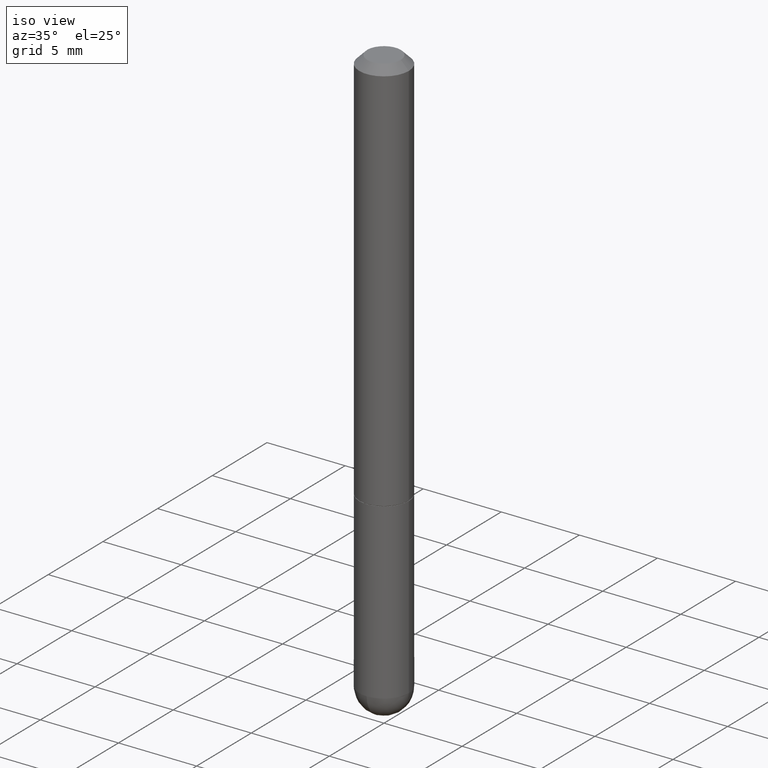
[diagram: clean part render]
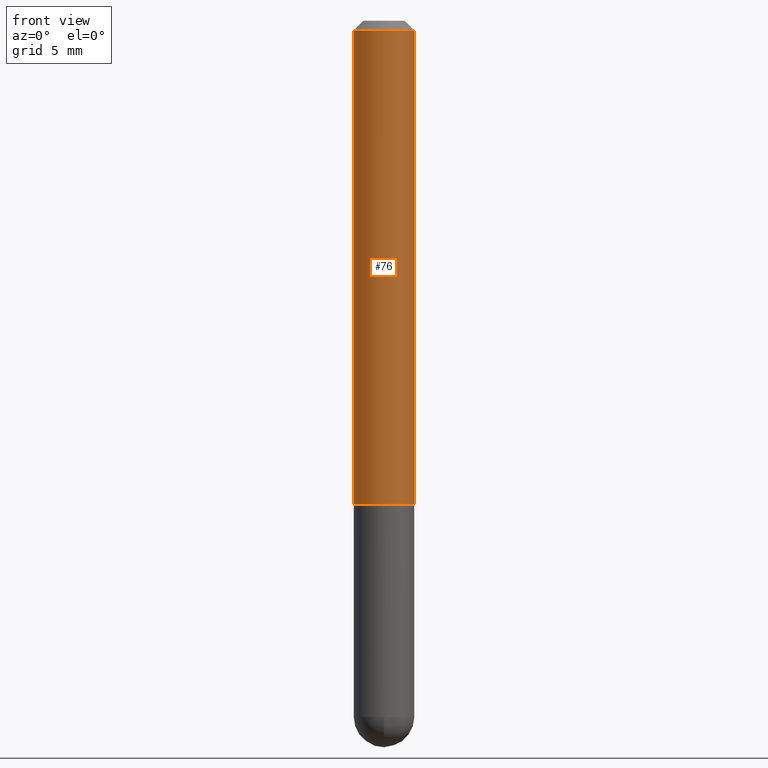
[diagram: tour spotlight — one face highlighted and labeled with its STEP entity id]
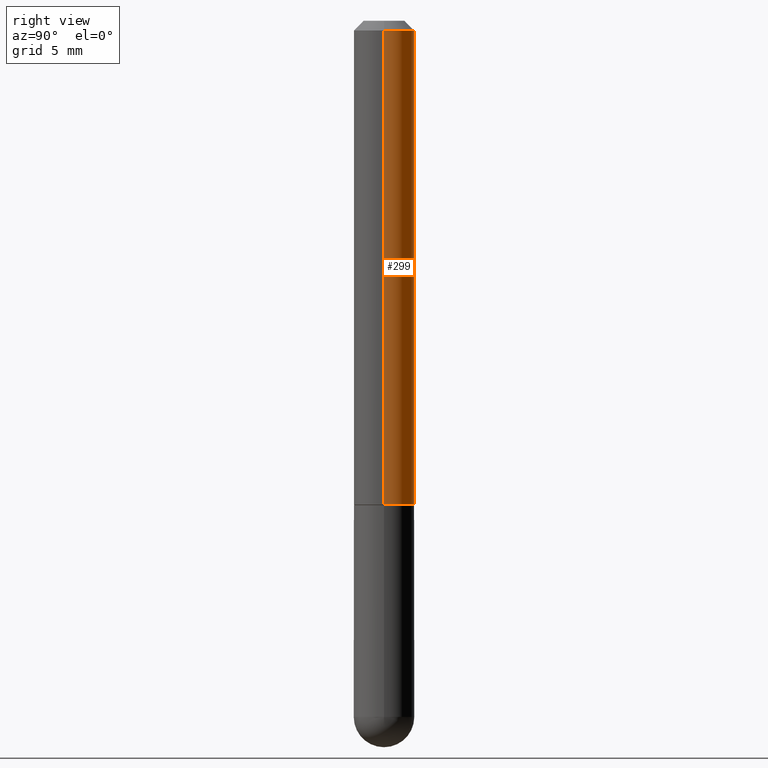
[diagram: tour spotlight — one face highlighted and labeled with its STEP entity id]
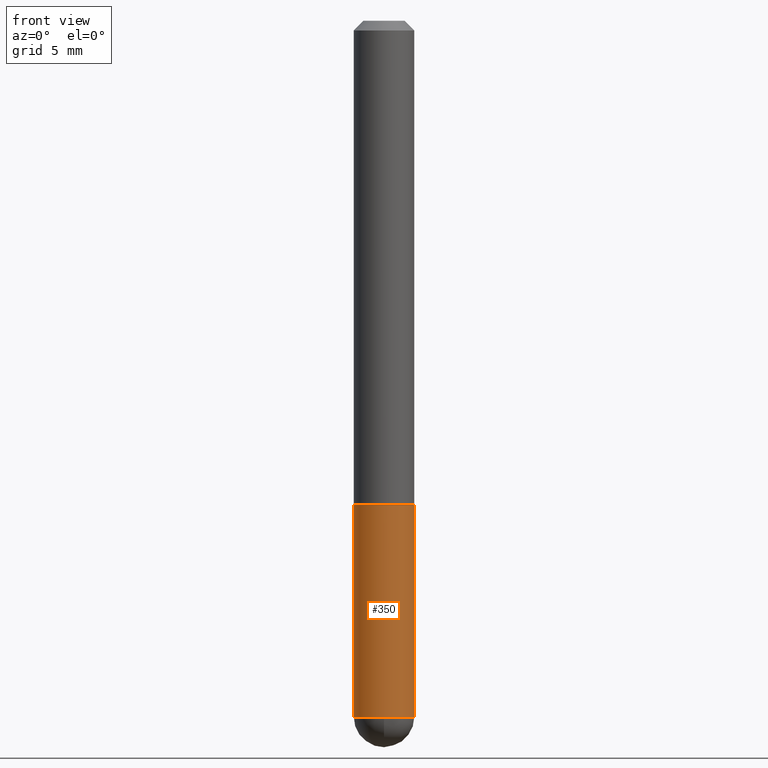
[diagram: tour spotlight — one face highlighted and labeled with its STEP entity id]
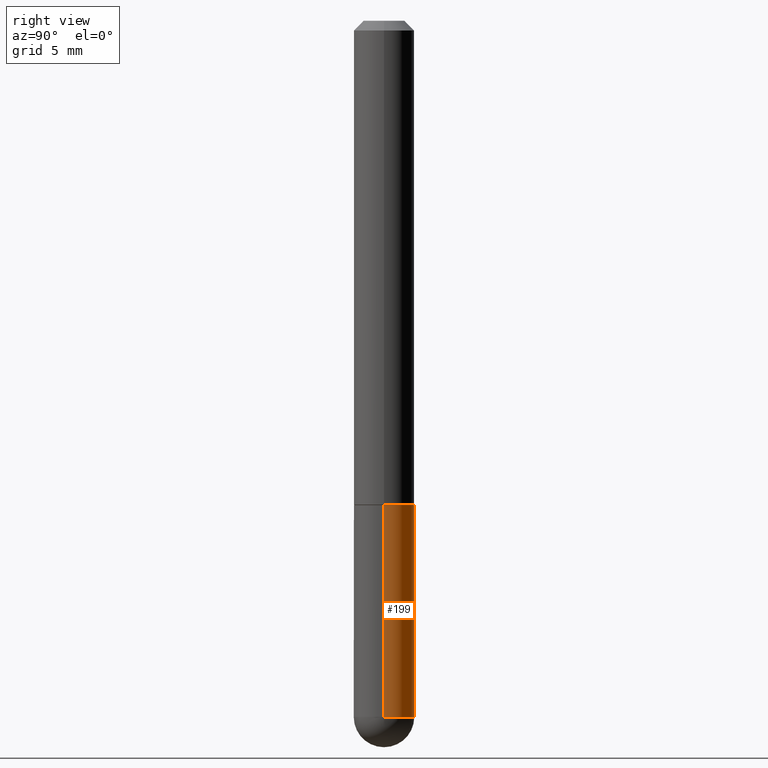
[diagram: tour spotlight — one face highlighted and labeled with its STEP entity id]
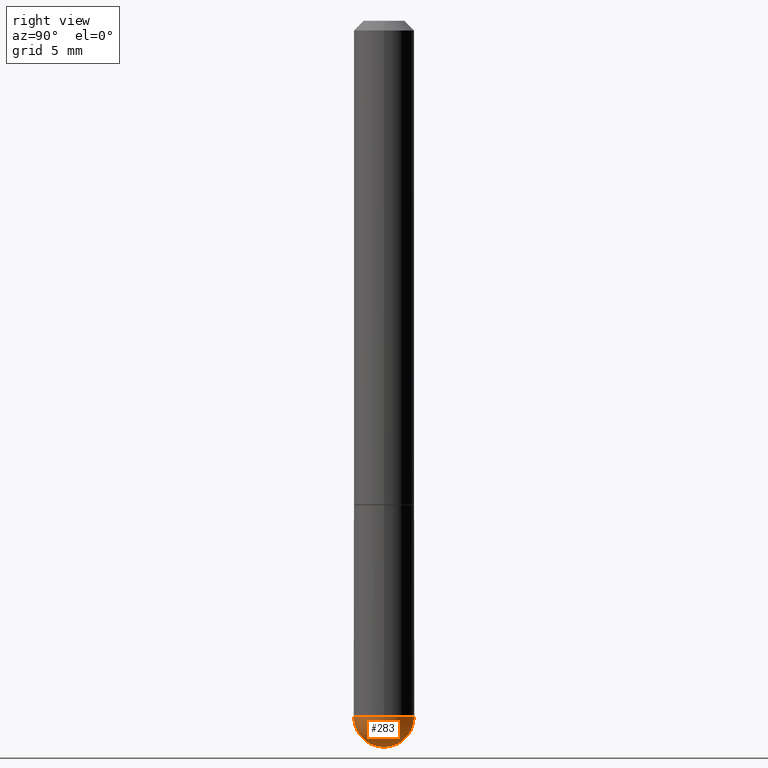
[diagram: tour spotlight — one face highlighted and labeled with its STEP entity id]
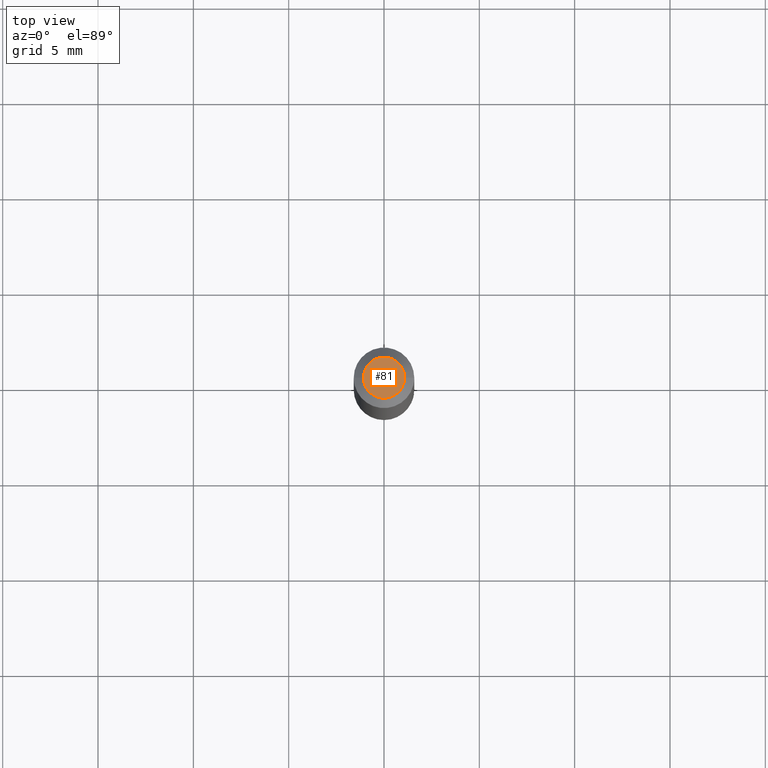
[diagram: tour spotlight — one face highlighted and labeled with its STEP entity id]
A machine part: a face-by-face anatomy tour. The part has 13 B-rep faces; the first image is the clean iso view, then the 6 largest visible faces are spotlighted one at a time (largest first), each with its STEP entity span.

Face 1 — front view, entity #76. In plain terms, the highlighted cylindrical surface (edge-blend (fillet) strip) has radius 1.5875 mm, axis along (-0, 0, 1).
Definition (entity closure, byte-faithful):
#2 = CYLINDRICAL_SURFACE ( 'NONE', #74, 0.06250000000000004163 ) ;
#15 = ORIENTED_EDGE ( 'NONE', *, *, #376, .F. ) ;
#37 = CARTESIAN_POINT ( 'NONE',  ( -0.06250000000000013878, -1.334820532290516771E-15, -0.9990000000000002212 ) ) ;
#67 = CARTESIAN_POINT ( 'NONE',  ( 0.06250000000000004163, -4.364351673553919652E-16, 3.047610484872461972E-30 ) ) ;
#74 = AXIS2_PLACEMENT_3D ( 'NONE', #292, #354, #89 ) ;
#76 = ADVANCED_FACE ( 'NONE', ( #132 ), #2, .T. ) ;
#86 = DIRECTION ( 'NONE',  ( -2.445468806185136877E-29, 3.491481338843145188E-15, 1.000000000000000000 ) ) ;
#89 = DIRECTION ( 'NONE',  ( 1.000000000000000000, -6.982962677686266711E-15, 4.876176775795935793E-29 ) ) ;
#95 = CARTESIAN_POINT ( 'NONE',  ( -0.06250000000000004163, 4.440892098500629120E-16, -3.074334431409318216E-30 ) ) ;
#119 = EDGE_CURVE ( 'NONE', #385, #229, #175, .T. ) ;
#120 = DIRECTION ( 'NONE',  ( 1.000000000000000000, -6.982962677686270655E-15, 0.000000000000000000 ) ) ;
#126 = VECTOR ( 'NONE', #86, 39.37007874015748143 ) ;
#130 = DIRECTION ( 'NONE',  ( -2.445468806185136597E-29, 3.491481338843145583E-15, 1.000000000000000000 ) ) ;
#132 = FACE_OUTER_BOUND ( 'NONE', #140, .T. ) ;
#134 = CARTESIAN_POINT ( 'NONE',  ( -0.06249999999999995143, 3.666055405785281740E-16, -0.02000000000000006981 ) ) ;
#140 = EDGE_LOOP ( 'NONE', ( #15, #412, #244, #178 ) ) ;
#144 = EDGE_CURVE ( 'NONE', #229, #216, #254, .T. ) ;
#151 = DIRECTION ( 'NONE',  ( -2.445468806185136597E-29, 3.491481338843145583E-15, 1.000000000000000000 ) ) ;
#159 = DIRECTION ( 'NONE',  ( 1.000000000000000000, -6.982962677686266711E-15, 0.000000000000000000 ) ) ;
#173 = DIRECTION ( 'NONE',  ( -2.445468806185136877E-29, 3.491481338843145188E-15, 1.000000000000000000 ) ) ;
#175 = CIRCLE ( 'NONE', #402, 0.06250000000000013878 ) ;
#178 = ORIENTED_EDGE ( 'NONE', *, *, #340, .F. ) ;
#197 = CARTESIAN_POINT ( 'NONE',  ( 4.890937612370289799E-31, -6.982962677686315028E-17, -0.02000000000000006981 ) ) ;
#201 = LINE ( 'NONE', #95, #337 ) ;
#207 = CARTESIAN_POINT ( 'NONE',  ( 0.06249999999999995143, -4.986107516375835278E-16, -0.02000000000000006981 ) ) ;
#216 = VERTEX_POINT ( 'NONE', #207 ) ;
#229 = VERTEX_POINT ( 'NONE', #259 ) ;
#244 = ORIENTED_EDGE ( 'NONE', *, *, #144, .T. ) ;
#247 = CIRCLE ( 'NONE', #312, 0.06249999999999995143 ) ;
#254 = LINE ( 'NONE', #67, #126 ) ;
#259 = CARTESIAN_POINT ( 'NONE',  ( 0.06250000000000013878, -3.924425024859695428E-15, -0.9990000000000002212 ) ) ;
#292 = CARTESIAN_POINT ( 'NONE',  ( 0.000000000000000000, 0.000000000000000000, 0.000000000000000000 ) ) ;
#312 = AXIS2_PLACEMENT_3D ( 'NONE', #197, #130, #159 ) ;
#325 = VERTEX_POINT ( 'NONE', #134 ) ;
#337 = VECTOR ( 'NONE', #173, 39.37007874015748143 ) ;
#340 = EDGE_CURVE ( 'NONE', #325, #216, #247, .T. ) ;
#352 = CARTESIAN_POINT ( 'NONE',  ( 2.443023337378951835E-29, -3.487989857504302970E-15, -0.9990000000000002212 ) ) ;
#354 = DIRECTION ( 'NONE',  ( -2.445468806185136597E-29, 3.491481338843145583E-15, 1.000000000000000000 ) ) ;
#376 = EDGE_CURVE ( 'NONE', #385, #325, #201, .T. ) ;
#385 = VERTEX_POINT ( 'NONE', #37 ) ;
#402 = AXIS2_PLACEMENT_3D ( 'NONE', #352, #151, #120 ) ;
#412 = ORIENTED_EDGE ( 'NONE', *, *, #119, .T. ) ;

Face 2 — right view, entity #299. In plain terms, the highlighted cylindrical surface (edge-blend (fillet) strip) has radius 1.5875 mm, axis along (-0, 0, 1).
Definition (entity closure, byte-faithful):
#3 = ORIENTED_EDGE ( 'NONE', *, *, #314, .F. ) ;
#7 = DIRECTION ( 'NONE',  ( -2.445468806185136597E-29, 3.491481338843145583E-15, 1.000000000000000000 ) ) ;
#36 = FACE_OUTER_BOUND ( 'NONE', #353, .T. ) ;
#37 = CARTESIAN_POINT ( 'NONE',  ( -0.06250000000000013878, -1.334820532290516771E-15, -0.9990000000000002212 ) ) ;
#40 = EDGE_CURVE ( 'NONE', #229, #385, #179, .T. ) ;
#67 = CARTESIAN_POINT ( 'NONE',  ( 0.06250000000000004163, -4.364351673553919652E-16, 3.047610484872461972E-30 ) ) ;
#83 = AXIS2_PLACEMENT_3D ( 'NONE', #204, #332, #274 ) ;
#86 = DIRECTION ( 'NONE',  ( -2.445468806185136877E-29, 3.491481338843145188E-15, 1.000000000000000000 ) ) ;
#95 = CARTESIAN_POINT ( 'NONE',  ( -0.06250000000000004163, 4.440892098500629120E-16, -3.074334431409318216E-30 ) ) ;
#126 = VECTOR ( 'NONE', #86, 39.37007874015748143 ) ;
#127 = AXIS2_PLACEMENT_3D ( 'NONE', #137, #7, #200 ) ;
#134 = CARTESIAN_POINT ( 'NONE',  ( -0.06249999999999995143, 3.666055405785281740E-16, -0.02000000000000006981 ) ) ;
#137 = CARTESIAN_POINT ( 'NONE',  ( 4.890937612370289799E-31, -6.982962677686315028E-17, -0.02000000000000006981 ) ) ;
#144 = EDGE_CURVE ( 'NONE', #229, #216, #254, .T. ) ;
#147 = AXIS2_PLACEMENT_3D ( 'NONE', #275, #167, #297 ) ;
#162 = ORIENTED_EDGE ( 'NONE', *, *, #40, .T. ) ;
#167 = DIRECTION ( 'NONE',  ( -2.445468806185136597E-29, 3.491481338843145583E-15, 1.000000000000000000 ) ) ;
#173 = DIRECTION ( 'NONE',  ( -2.445468806185136877E-29, 3.491481338843145188E-15, 1.000000000000000000 ) ) ;
#179 = CIRCLE ( 'NONE', #83, 0.06250000000000013878 ) ;
#200 = DIRECTION ( 'NONE',  ( 1.000000000000000000, -6.982962677686266711E-15, 0.000000000000000000 ) ) ;
#201 = LINE ( 'NONE', #95, #337 ) ;
#204 = CARTESIAN_POINT ( 'NONE',  ( 2.443023337378951835E-29, -3.487989857504302970E-15, -0.9990000000000002212 ) ) ;
#207 = CARTESIAN_POINT ( 'NONE',  ( 0.06249999999999995143, -4.986107516375835278E-16, -0.02000000000000006981 ) ) ;
#216 = VERTEX_POINT ( 'NONE', #207 ) ;
#229 = VERTEX_POINT ( 'NONE', #259 ) ;
#254 = LINE ( 'NONE', #67, #126 ) ;
#259 = CARTESIAN_POINT ( 'NONE',  ( 0.06250000000000013878, -3.924425024859695428E-15, -0.9990000000000002212 ) ) ;
#274 = DIRECTION ( 'NONE',  ( 1.000000000000000000, -6.982962677686270655E-15, 0.000000000000000000 ) ) ;
#275 = CARTESIAN_POINT ( 'NONE',  ( 0.000000000000000000, 0.000000000000000000, 0.000000000000000000 ) ) ;
#297 = DIRECTION ( 'NONE',  ( 1.000000000000000000, -6.982962677686266711E-15, 4.876176775795935793E-29 ) ) ;
#299 = ADVANCED_FACE ( 'NONE', ( #36 ), #394, .T. ) ;
#314 = EDGE_CURVE ( 'NONE', #216, #325, #317, .T. ) ;
#317 = CIRCLE ( 'NONE', #127, 0.06249999999999995143 ) ;
#325 = VERTEX_POINT ( 'NONE', #134 ) ;
#332 = DIRECTION ( 'NONE',  ( -2.445468806185136597E-29, 3.491481338843145583E-15, 1.000000000000000000 ) ) ;
#337 = VECTOR ( 'NONE', #173, 39.37007874015748143 ) ;
#347 = ORIENTED_EDGE ( 'NONE', *, *, #376, .T. ) ;
#353 = EDGE_LOOP ( 'NONE', ( #162, #347, #3, #361 ) ) ;
#361 = ORIENTED_EDGE ( 'NONE', *, *, #144, .F. ) ;
#376 = EDGE_CURVE ( 'NONE', #385, #325, #201, .T. ) ;
#385 = VERTEX_POINT ( 'NONE', #37 ) ;
#394 = CYLINDRICAL_SURFACE ( 'NONE', #147, 0.06250000000000004163 ) ;

Face 3 — front view, entity #350. In plain terms, the highlighted cylindrical surface (edge-blend (fillet) strip) has radius 1.5875 mm, axis along (-0, 0, 1).
Definition (entity closure, byte-faithful):
#5 = VERTEX_POINT ( 'NONE', #107 ) ;
#6 = CARTESIAN_POINT ( 'NONE',  ( -4.440892098500294840E-16, -0.06250000000000532907, -1.437500000000000000 ) ) ;
#18 = VERTEX_POINT ( 'NONE', #6 ) ;
#29 = CARTESIAN_POINT ( 'NONE',  ( 0.06249999999999997224, -4.364351673553914722E-16, 3.047610484872458469E-30 ) ) ;
#41 = VECTOR ( 'NONE', #180, 39.37007874015748143 ) ;
#44 = LINE ( 'NONE', #79, #41 ) ;
#52 = ORIENTED_EDGE ( 'NONE', *, *, #245, .T. ) ;
#53 = CARTESIAN_POINT ( 'NONE',  ( -0.06250000000000000000, -3.811153671865022332E-15, -1.000000000000000222 ) ) ;
#57 = CARTESIAN_POINT ( 'NONE',  ( 3.515361408891134418E-29, -5.019004424587023131E-15, -1.437500000000000222 ) ) ;
#65 = EDGE_CURVE ( 'NONE', #154, #5, #149, .T. ) ;
#70 = DIRECTION ( 'NONE',  ( 1.000000000000000000, -6.982962677686262766E-15, 0.000000000000000000 ) ) ;
#79 = CARTESIAN_POINT ( 'NONE',  ( -0.06249999999999997224, 4.440892098500624190E-16, -3.074334431409315063E-30 ) ) ;
#80 = VERTEX_POINT ( 'NONE', #251 ) ;
#87 = DIRECTION ( 'NONE',  ( 1.000000000000000000, -6.982962677686266711E-15, 4.876176775795935793E-29 ) ) ;
#98 = CARTESIAN_POINT ( 'NONE',  ( 0.000000000000000000, 0.000000000000000000, 0.000000000000000000 ) ) ;
#102 = VERTEX_POINT ( 'NONE', #122 ) ;
#107 = CARTESIAN_POINT ( 'NONE',  ( 0.06250000000000000000, -3.927916506198537646E-15, -1.000000000000000222 ) ) ;
#122 = CARTESIAN_POINT ( 'NONE',  ( -0.06249999999999995143, -3.811153671865022332E-15, -1.437500000000000222 ) ) ;
#128 = FACE_OUTER_BOUND ( 'NONE', #336, .T. ) ;
#143 = ORIENTED_EDGE ( 'NONE', *, *, #357, .T. ) ;
#149 = CIRCLE ( 'NONE', #395, 0.06250000000000000000 ) ;
#154 = VERTEX_POINT ( 'NONE', #53 ) ;
#155 = DIRECTION ( 'NONE',  ( -2.445468806185136877E-29, 3.491481338843145188E-15, 1.000000000000000000 ) ) ;
#156 = EDGE_CURVE ( 'NONE', #18, #80, #184, .T. ) ;
#180 = DIRECTION ( 'NONE',  ( -2.445468806185136877E-29, 3.491481338843145188E-15, 1.000000000000000000 ) ) ;
#184 = CIRCLE ( 'NONE', #307, 0.06249999999999995143 ) ;
#187 = CARTESIAN_POINT ( 'NONE',  ( 3.515361408891134418E-29, -5.019004424587023131E-15, -1.437500000000000222 ) ) ;
#219 = EDGE_CURVE ( 'NONE', #102, #154, #44, .T. ) ;
#231 = DIRECTION ( 'NONE',  ( -2.445468806185136597E-29, 3.491481338843145583E-15, 1.000000000000000000 ) ) ;
#234 = ORIENTED_EDGE ( 'NONE', *, *, #156, .T. ) ;
#245 = EDGE_CURVE ( 'NONE', #80, #5, #407, .T. ) ;
#248 = ORIENTED_EDGE ( 'NONE', *, *, #65, .F. ) ;
#251 = CARTESIAN_POINT ( 'NONE',  ( 0.06249999999999995143, -4.691678049070475040E-15, -1.437500000000000222 ) ) ;
#263 = CYLINDRICAL_SURFACE ( 'NONE', #345, 0.06249999999999997224 ) ;
#267 = DIRECTION ( 'NONE',  ( 1.000000000000000000, -6.982962677686268288E-15, 0.000000000000000000 ) ) ;
#291 = AXIS2_PLACEMENT_3D ( 'NONE', #57, #231, #267 ) ;
#296 = ORIENTED_EDGE ( 'NONE', *, *, #219, .F. ) ;
#307 = AXIS2_PLACEMENT_3D ( 'NONE', #187, #384, #348 ) ;
#336 = EDGE_LOOP ( 'NONE', ( #296, #143, #234, #52, #248 ) ) ;
#343 = DIRECTION ( 'NONE',  ( -2.445468806185136597E-29, 3.491481338843145583E-15, 1.000000000000000000 ) ) ;
#345 = AXIS2_PLACEMENT_3D ( 'NONE', #98, #343, #87 ) ;
#348 = DIRECTION ( 'NONE',  ( 1.000000000000000000, -6.982962677686268288E-15, 0.000000000000000000 ) ) ;
#350 = ADVANCED_FACE ( 'NONE', ( #128 ), #263, .T. ) ;
#357 = EDGE_CURVE ( 'NONE', #102, #18, #377, .T. ) ;
#377 = CIRCLE ( 'NONE', #291, 0.06249999999999995143 ) ;
#384 = DIRECTION ( 'NONE',  ( -2.445468806185136597E-29, 3.491481338843145583E-15, 1.000000000000000000 ) ) ;
#393 = DIRECTION ( 'NONE',  ( -2.445468806185136597E-29, 3.491481338843145583E-15, 1.000000000000000000 ) ) ;
#395 = AXIS2_PLACEMENT_3D ( 'NONE', #404, #393, #70 ) ;
#403 = VECTOR ( 'NONE', #155, 39.37007874015748143 ) ;
#404 = CARTESIAN_POINT ( 'NONE',  ( 2.445468806185136877E-29, -3.491481338843145977E-15, -1.000000000000000222 ) ) ;
#407 = LINE ( 'NONE', #29, #403 ) ;

Face 4 — right view, entity #199. In plain terms, the highlighted cylindrical surface (edge-blend (fillet) strip) has radius 1.5875 mm, axis along (-0, 0, 1).
Definition (entity closure, byte-faithful):
#4 = CIRCLE ( 'NONE', #310, 0.06249999999999995143 ) ;
#5 = VERTEX_POINT ( 'NONE', #107 ) ;
#8 = DIRECTION ( 'NONE',  ( 1.000000000000000000, -6.982962677686262766E-15, 0.000000000000000000 ) ) ;
#11 = DIRECTION ( 'NONE',  ( -2.445468806185136597E-29, 3.491481338843145583E-15, 1.000000000000000000 ) ) ;
#12 = CARTESIAN_POINT ( 'NONE',  ( 2.445468806185136877E-29, -3.491481338843145977E-15, -1.000000000000000222 ) ) ;
#29 = CARTESIAN_POINT ( 'NONE',  ( 0.06249999999999997224, -4.364351673553914722E-16, 3.047610484872458469E-30 ) ) ;
#31 = EDGE_LOOP ( 'NONE', ( #54, #71, #261, #327, #113 ) ) ;
#33 = AXIS2_PLACEMENT_3D ( 'NONE', #12, #11, #8 ) ;
#41 = VECTOR ( 'NONE', #180, 39.37007874015748143 ) ;
#43 = VERTEX_POINT ( 'NONE', #118 ) ;
#44 = LINE ( 'NONE', #79, #41 ) ;
#53 = CARTESIAN_POINT ( 'NONE',  ( -0.06250000000000000000, -3.811153671865022332E-15, -1.000000000000000222 ) ) ;
#54 = ORIENTED_EDGE ( 'NONE', *, *, #372, .T. ) ;
#63 = DIRECTION ( 'NONE',  ( -2.445468806185136597E-29, 3.491481338843145583E-15, 1.000000000000000000 ) ) ;
#71 = ORIENTED_EDGE ( 'NONE', *, *, #219, .T. ) ;
#78 = CIRCLE ( 'NONE', #281, 0.06249999999999995143 ) ;
#79 = CARTESIAN_POINT ( 'NONE',  ( -0.06249999999999997224, 4.440892098500624190E-16, -3.074334431409315063E-30 ) ) ;
#80 = VERTEX_POINT ( 'NONE', #251 ) ;
#102 = VERTEX_POINT ( 'NONE', #122 ) ;
#107 = CARTESIAN_POINT ( 'NONE',  ( 0.06250000000000000000, -3.927916506198537646E-15, -1.000000000000000222 ) ) ;
#113 = ORIENTED_EDGE ( 'NONE', *, *, #124, .T. ) ;
#118 = CARTESIAN_POINT ( 'NONE',  ( 4.364351673554256397E-16, 0.06249999999999480971, -1.437500000000000444 ) ) ;
#122 = CARTESIAN_POINT ( 'NONE',  ( -0.06249999999999995143, -3.811153671865022332E-15, -1.437500000000000222 ) ) ;
#124 = EDGE_CURVE ( 'NONE', #80, #43, #4, .T. ) ;
#142 = CIRCLE ( 'NONE', #33, 0.06250000000000000000 ) ;
#153 = DIRECTION ( 'NONE',  ( -2.445468806185136597E-29, 3.491481338843145583E-15, 1.000000000000000000 ) ) ;
#154 = VERTEX_POINT ( 'NONE', #53 ) ;
#155 = DIRECTION ( 'NONE',  ( -2.445468806185136877E-29, 3.491481338843145188E-15, 1.000000000000000000 ) ) ;
#160 = CARTESIAN_POINT ( 'NONE',  ( 0.000000000000000000, 0.000000000000000000, 0.000000000000000000 ) ) ;
#180 = DIRECTION ( 'NONE',  ( -2.445468806185136877E-29, 3.491481338843145188E-15, 1.000000000000000000 ) ) ;
#199 = ADVANCED_FACE ( 'NONE', ( #294 ), #390, .T. ) ;
#219 = EDGE_CURVE ( 'NONE', #102, #154, #44, .T. ) ;
#245 = EDGE_CURVE ( 'NONE', #80, #5, #407, .T. ) ;
#251 = CARTESIAN_POINT ( 'NONE',  ( 0.06249999999999995143, -4.691678049070475040E-15, -1.437500000000000222 ) ) ;
#257 = AXIS2_PLACEMENT_3D ( 'NONE', #160, #285, #378 ) ;
#260 = CARTESIAN_POINT ( 'NONE',  ( 3.515361408891134418E-29, -5.019004424587023131E-15, -1.437500000000000222 ) ) ;
#261 = ORIENTED_EDGE ( 'NONE', *, *, #290, .F. ) ;
#281 = AXIS2_PLACEMENT_3D ( 'NONE', #355, #153, #364 ) ;
#285 = DIRECTION ( 'NONE',  ( -2.445468806185136597E-29, 3.491481338843145583E-15, 1.000000000000000000 ) ) ;
#290 = EDGE_CURVE ( 'NONE', #5, #154, #142, .T. ) ;
#294 = FACE_OUTER_BOUND ( 'NONE', #31, .T. ) ;
#310 = AXIS2_PLACEMENT_3D ( 'NONE', #260, #63, #380 ) ;
#327 = ORIENTED_EDGE ( 'NONE', *, *, #245, .F. ) ;
#355 = CARTESIAN_POINT ( 'NONE',  ( 3.515361408891134418E-29, -5.019004424587023131E-15, -1.437500000000000222 ) ) ;
#364 = DIRECTION ( 'NONE',  ( 1.000000000000000000, -6.982962677686268288E-15, 0.000000000000000000 ) ) ;
#372 = EDGE_CURVE ( 'NONE', #43, #102, #78, .T. ) ;
#378 = DIRECTION ( 'NONE',  ( 1.000000000000000000, -6.982962677686266711E-15, 4.876176775795935793E-29 ) ) ;
#380 = DIRECTION ( 'NONE',  ( 1.000000000000000000, -6.982962677686268288E-15, 0.000000000000000000 ) ) ;
#390 = CYLINDRICAL_SURFACE ( 'NONE', #257, 0.06249999999999997224 ) ;
#403 = VECTOR ( 'NONE', #155, 39.37007874015748143 ) ;
#407 = LINE ( 'NONE', #29, #403 ) ;

Face 5 — right view, entity #283. In plain terms, the highlighted spherical surface has radius 1.5875 mm.
Definition (entity closure, byte-faithful):
#4 = CIRCLE ( 'NONE', #310, 0.06249999999999995143 ) ;
#6 = CARTESIAN_POINT ( 'NONE',  ( -4.440892098500294840E-16, -0.06250000000000532907, -1.437500000000000000 ) ) ;
#18 = VERTEX_POINT ( 'NONE', #6 ) ;
#19 = ORIENTED_EDGE ( 'NONE', *, *, #46, .T. ) ;
#35 = EDGE_CURVE ( 'NONE', #397, #18, #181, .T. ) ;
#43 = VERTEX_POINT ( 'NONE', #118 ) ;
#46 = EDGE_CURVE ( 'NONE', #397, #43, #256, .T. ) ;
#55 = AXIS2_PLACEMENT_3D ( 'NONE', #311, #211, #249 ) ;
#63 = DIRECTION ( 'NONE',  ( -2.445468806185136597E-29, 3.491481338843145583E-15, 1.000000000000000000 ) ) ;
#80 = VERTEX_POINT ( 'NONE', #251 ) ;
#90 = ORIENTED_EDGE ( 'NONE', *, *, #35, .F. ) ;
#104 = DIRECTION ( 'NONE',  ( -1.000000000000000000, 7.105427357601001070E-15, -4.926315508542082329E-29 ) ) ;
#118 = CARTESIAN_POINT ( 'NONE',  ( 4.364351673554256397E-16, 0.06249999999999480971, -1.437500000000000444 ) ) ;
#124 = EDGE_CURVE ( 'NONE', #80, #43, #4, .T. ) ;
#131 = SPHERICAL_SURFACE ( 'NONE', #270, 0.06250000000000018041 ) ;
#156 = EDGE_CURVE ( 'NONE', #18, #80, #184, .T. ) ;
#164 = ORIENTED_EDGE ( 'NONE', *, *, #124, .F. ) ;
#171 = CARTESIAN_POINT ( 'NONE',  ( 3.184241630977247611E-29, -5.493186792727071849E-15, -1.437500000000000000 ) ) ;
#181 = CIRCLE ( 'NONE', #214, 0.06250000000000018041 ) ;
#184 = CIRCLE ( 'NONE', #307, 0.06249999999999995143 ) ;
#187 = CARTESIAN_POINT ( 'NONE',  ( 3.515361408891134418E-29, -5.019004424587023131E-15, -1.437500000000000222 ) ) ;
#211 = DIRECTION ( 'NONE',  ( 1.000000000000000000, -6.982962677686265922E-15, 4.883557194083112340E-29 ) ) ;
#214 = AXIS2_PLACEMENT_3D ( 'NONE', #398, #104, #365 ) ;
#237 = DIRECTION ( 'NONE',  ( -1.000000000000000000, 6.982962677686265922E-15, -4.883557194083112340E-29 ) ) ;
#249 = DIRECTION ( 'NONE',  ( 6.982962677686266711E-15, 1.000000000000000000, 0.000000000000000000 ) ) ;
#251 = CARTESIAN_POINT ( 'NONE',  ( 0.06249999999999995143, -4.691678049070475040E-15, -1.437500000000000222 ) ) ;
#256 = CIRCLE ( 'NONE', #55, 0.06250000000000018041 ) ;
#260 = CARTESIAN_POINT ( 'NONE',  ( 3.515361408891134418E-29, -5.019004424587023131E-15, -1.437500000000000222 ) ) ;
#264 = DIRECTION ( 'NONE',  ( 6.982962677686265922E-15, 1.000000000000000000, -4.370956789862807739E-15 ) ) ;
#268 = FACE_OUTER_BOUND ( 'NONE', #306, .T. ) ;
#270 = AXIS2_PLACEMENT_3D ( 'NONE', #171, #237, #264 ) ;
#283 = ADVANCED_FACE ( 'NONE', ( #268 ), #131, .T. ) ;
#295 = CARTESIAN_POINT ( 'NONE',  ( 3.339755826017505008E-29, -5.707577355157432999E-15, -1.500000000000000222 ) ) ;
#303 = ORIENTED_EDGE ( 'NONE', *, *, #156, .F. ) ;
#306 = EDGE_LOOP ( 'NONE', ( #90, #19, #164, #303 ) ) ;
#307 = AXIS2_PLACEMENT_3D ( 'NONE', #187, #384, #348 ) ;
#310 = AXIS2_PLACEMENT_3D ( 'NONE', #260, #63, #380 ) ;
#311 = CARTESIAN_POINT ( 'NONE',  ( 3.184241630977247611E-29, -5.493186792727071849E-15, -1.437500000000000000 ) ) ;
#348 = DIRECTION ( 'NONE',  ( 1.000000000000000000, -6.982962677686268288E-15, 0.000000000000000000 ) ) ;
#365 = DIRECTION ( 'NONE',  ( -7.105427357601001859E-15, -1.000000000000000000, 0.000000000000000000 ) ) ;
#380 = DIRECTION ( 'NONE',  ( 1.000000000000000000, -6.982962677686268288E-15, 0.000000000000000000 ) ) ;
#384 = DIRECTION ( 'NONE',  ( -2.445468806185136597E-29, 3.491481338843145583E-15, 1.000000000000000000 ) ) ;
#397 = VERTEX_POINT ( 'NONE', #295 ) ;
#398 = CARTESIAN_POINT ( 'NONE',  ( 3.184241630977247611E-29, -5.493186792727071849E-15, -1.437500000000000000 ) ) ;

Face 6 — top view, entity #81. In plain terms, the highlighted planar face has unit normal (0, -0, -1).
Definition (entity closure, byte-faithful):
#13 = VERTEX_POINT ( 'NONE', #174 ) ;
#20 = CIRCLE ( 'NONE', #358, 0.04249999999999961448 ) ;
#22 = EDGE_CURVE ( 'NONE', #13, #186, #20, .T. ) ;
#25 = DIRECTION ( 'NONE',  ( 1.000000000000000000, -6.982962677686266711E-15, 4.852736867747410488E-29 ) ) ;
#26 = CIRCLE ( 'NONE', #300, 0.04249999999999961448 ) ;
#60 = CARTESIAN_POINT ( 'NONE',  ( 0.04249999999999961448, -3.950909582714350189E-16, 2.731847993664287377E-16 ) ) ;
#81 = ADVANCED_FACE ( 'NONE', ( #129 ), #163, .F. ) ;
#100 = CARTESIAN_POINT ( 'NONE',  ( 2.967759138016636432E-16, 0.04249999999999961448, -1.179555721761916759E-17 ) ) ;
#110 = EDGE_CURVE ( 'NONE', #186, #13, #26, .T. ) ;
#123 = ORIENTED_EDGE ( 'NONE', *, *, #110, .T. ) ;
#125 = DIRECTION ( 'NONE',  ( -1.000000000000000000, 6.982962677686265922E-15, -4.876176775795935793E-29 ) ) ;
#129 = FACE_OUTER_BOUND ( 'NONE', #212, .T. ) ;
#157 = DIRECTION ( 'NONE',  ( -2.445468806185136597E-29, 3.491481338843145583E-15, 1.000000000000000000 ) ) ;
#163 = PLANE ( 'NONE',  #323 ) ;
#174 = CARTESIAN_POINT ( 'NONE',  ( -0.04249999999999961448, 3.316907271900963770E-16, 2.731847993664241525E-16 ) ) ;
#186 = VERTEX_POINT ( 'NONE', #60 ) ;
#203 = CARTESIAN_POINT ( 'NONE',  ( -6.680649051745406845E-45, 9.538196290434862081E-31, 2.731847993664263218E-16 ) ) ;
#212 = EDGE_LOOP ( 'NONE', ( #383, #123 ) ) ;
#300 = AXIS2_PLACEMENT_3D ( 'NONE', #315, #157, #25 ) ;
#301 = DIRECTION ( 'NONE',  ( 1.000000000000000000, -6.982962677686266711E-15, 4.852736867747410488E-29 ) ) ;
#315 = CARTESIAN_POINT ( 'NONE',  ( -6.680649051745406845E-45, 9.538196290434862081E-31, 2.731847993664263218E-16 ) ) ;
#323 = AXIS2_PLACEMENT_3D ( 'NONE', #100, #410, #125 ) ;
#329 = DIRECTION ( 'NONE',  ( -2.445468806185136597E-29, 3.491481338843145583E-15, 1.000000000000000000 ) ) ;
#358 = AXIS2_PLACEMENT_3D ( 'NONE', #203, #329, #301 ) ;
#383 = ORIENTED_EDGE ( 'NONE', *, *, #22, .T. ) ;
#410 = DIRECTION ( 'NONE',  ( 2.438088387897960049E-29, -3.491481338843145188E-15, -1.000000000000000000 ) ) ;